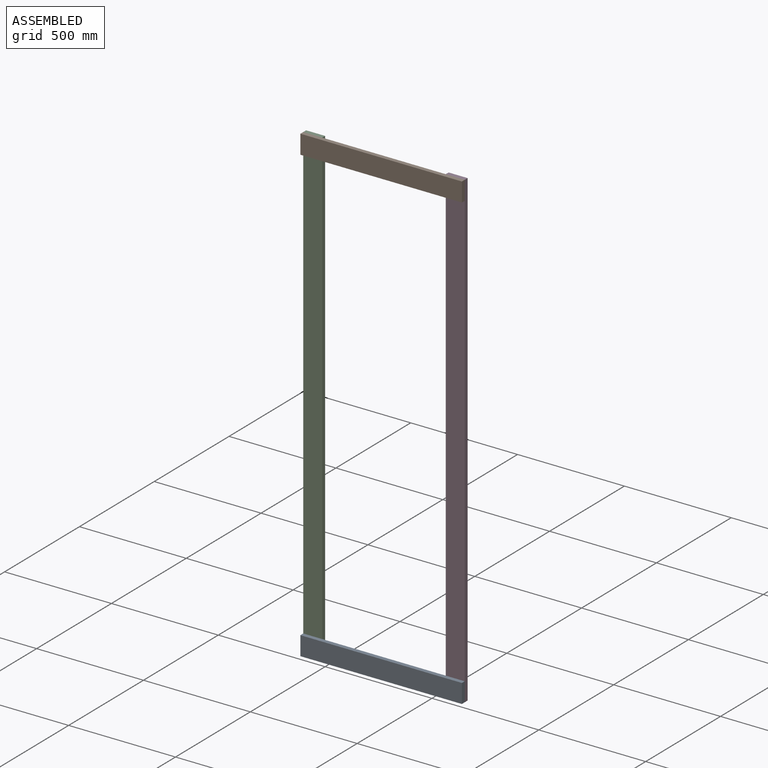
[diagram: assembled view]
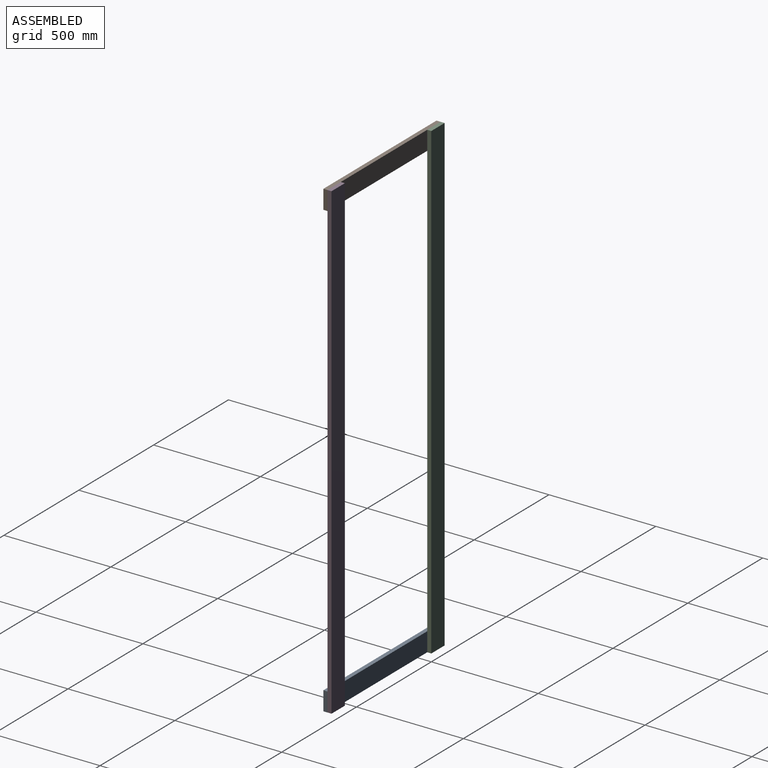
[diagram: assembled view, second angle]
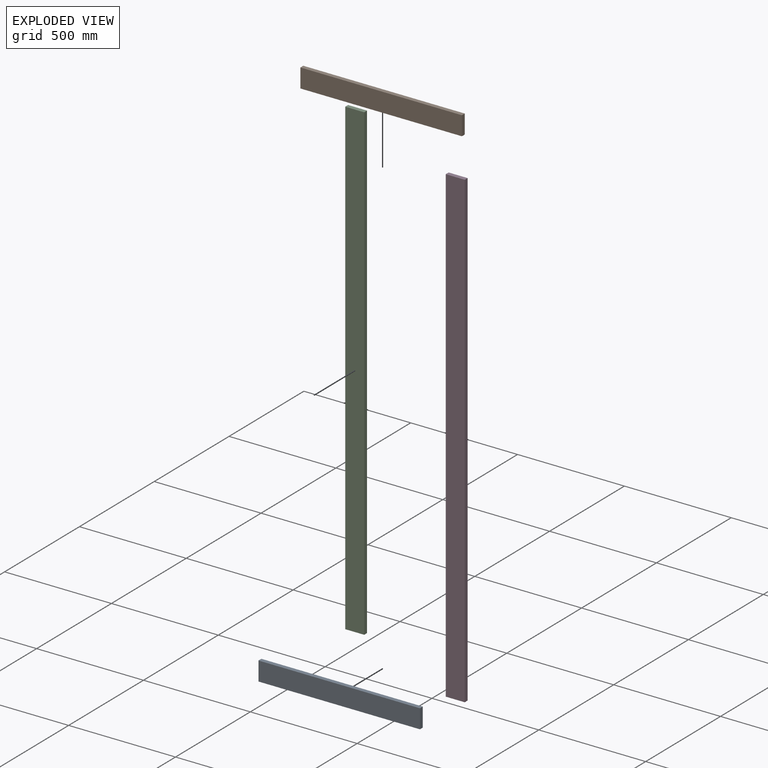
[diagram: exploded view]
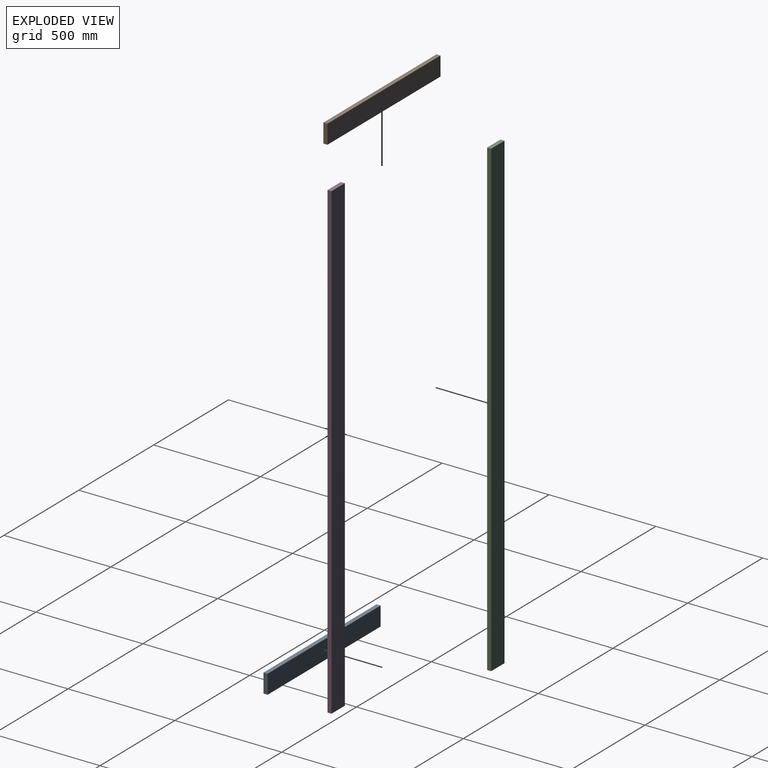
[diagram: exploded view, second angle]
ASSEMBLY  parts=4 mates=3
PART A: 6 faces, bbox 755.7x88.9x19.1 mm
  f0: plane 755.65x19.05mm, normal (0,1,0), area 14395.1mm2, adj f1,f3,f4,f5
  f1: plane 755.65x88.9mm, normal (0,0,1), area 67177.3mm2, adj f0,f2,f4,f5
  f2: plane 755.65x19.05mm, normal (0,-1,0), area 14395.1mm2, adj f1,f3,f4,f5
  f3: plane 755.65x88.9mm, normal (0,0,-1), area 67177.3mm2, adj f0,f2,f4,f5
  f4: plane 88.9x19.05mm, normal (-1,0,0), area 1693.5mm2, adj f0,f1,f2,f3
  f5: plane 88.9x19.05mm, normal (1,0,0), area 1693.5mm2, adj f0,f1,f2,f3
PART B: same geometry as A
PART C: 6 faces, bbox 2209.8x88.9x19.1 mm
  f0: plane 2209.8x19.05mm, normal (0,1,0), area 42096.7mm2, adj f1,f3,f4,f5
  f1: plane 2209.8x88.9mm, normal (0,0,1), area 196451.2mm2, adj f0,f2,f4,f5
  f2: plane 2209.8x19.05mm, normal (0,-1,0), area 42096.7mm2, adj f1,f3,f4,f5
  f3: plane 2209.8x88.9mm, normal (0,0,-1), area 196451.2mm2, adj f0,f2,f4,f5
  f4: plane 88.9x19.05mm, normal (-1,0,0), area 1693.5mm2, adj f0,f1,f2,f3
  f5: plane 88.9x19.05mm, normal (1,0,0), area 1693.5mm2, adj f0,f1,f2,f3
PART D: same geometry as C
PLACE A rot(axis=(-1,0,0),90deg) t=(-88.9,-28.58,1060.45)mm
PLACE B rot(axis=(-1,0,0),90deg) t=(-88.9,-28.58,3181.35)mm
PLACE C rot(axis=(0.58,-0.58,0.58),120deg) t=(819.15,-9.53,0)mm
PLACE D rot(axis=(0.58,0.58,-0.58),120deg) t=(-241.3,-9.53,2209.8)mm
MATE fastened A.f1 <-> D.f1  axis (0,1,0) through (666.75,-19.05,0)mm
MATE fastened B.f1 <-> D.f1  axis (0,1,0) through (666.75,-19.05,2209.8)mm
MATE fastened A.f1 <-> C.f1  axis (0,1,0) through (-88.9,-19.05,0)mm
